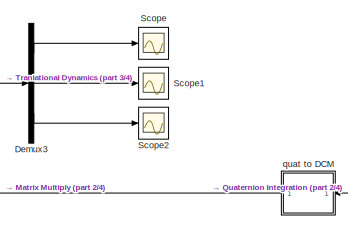
[diagram: root canvas - part 1/4, top center region]
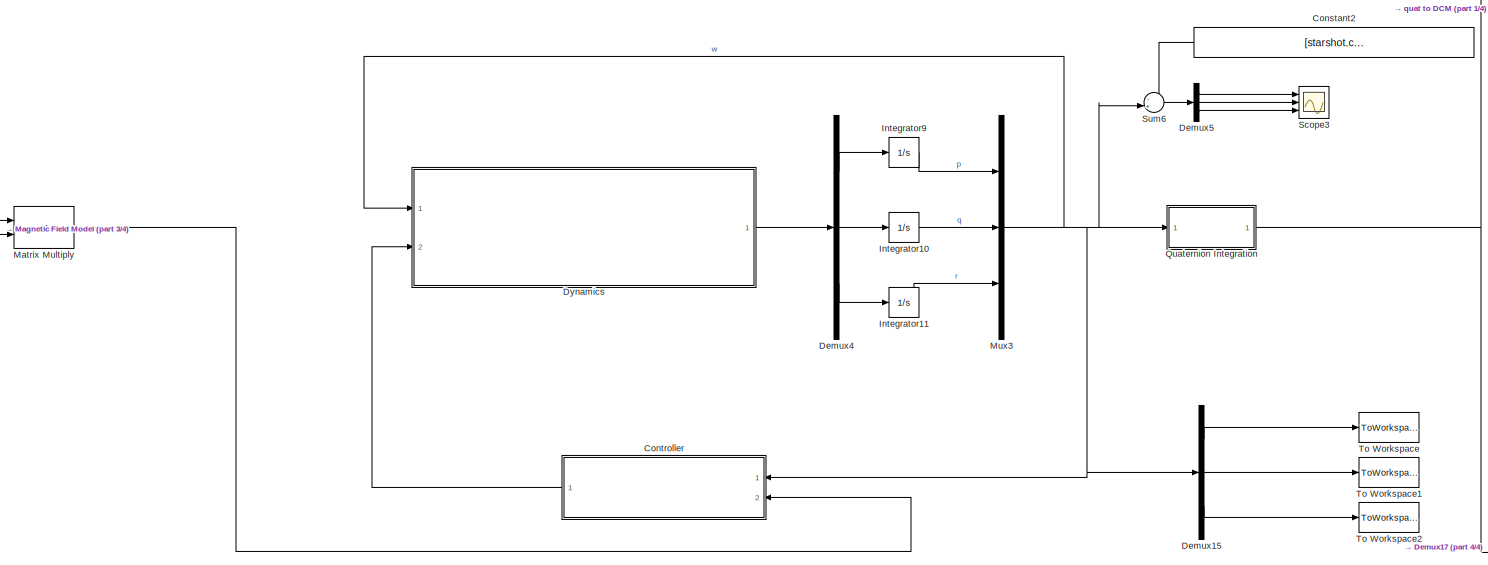
[diagram: root canvas - part 2/4, central region]
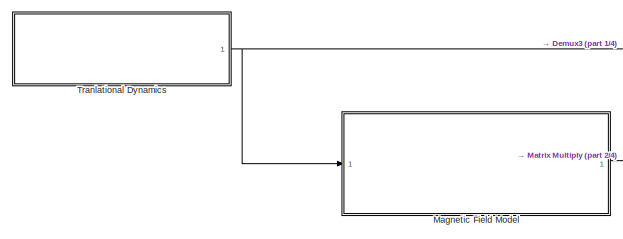
[diagram: root canvas - part 3/4, middle left region]
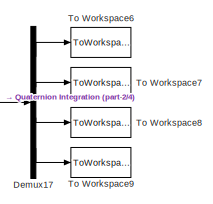
[diagram: root canvas - part 4/4, bottom right region]
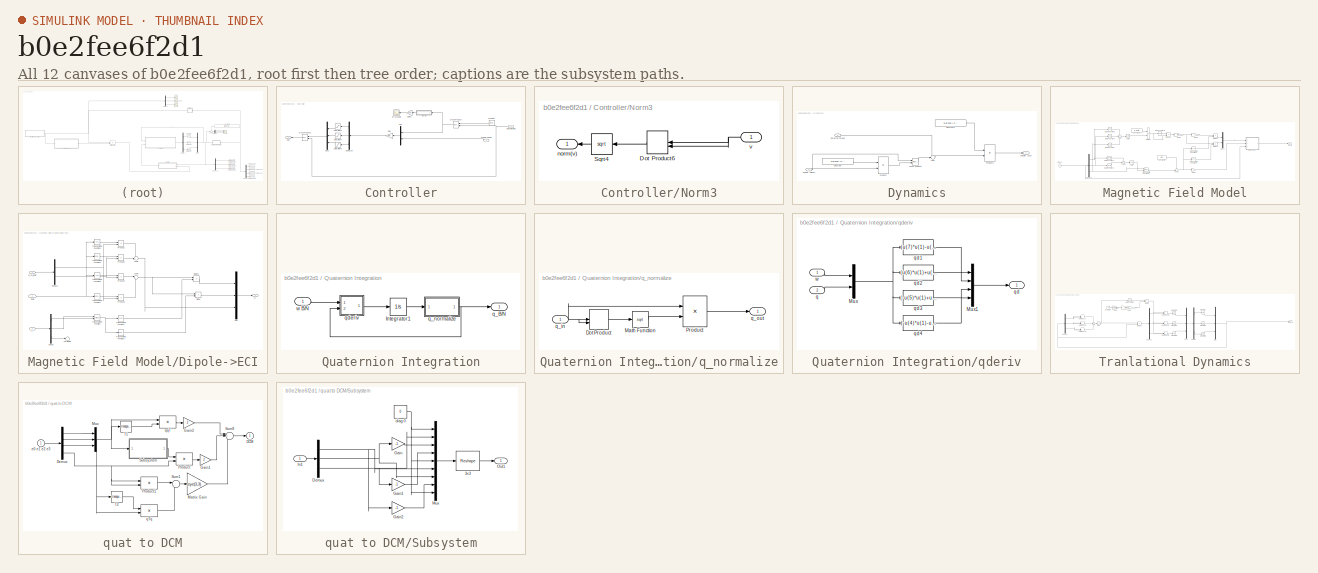
[diagram: thumbnail index - all 12 canvases of the model, root first then tree order]
MODEL slx_b0e2fee6f2d1
KIND model
CONFIG AbsTol = auto
CONFIG EnableMultiTasking = off
CONFIG FixedStep = auto
CONFIG MaxStep = 4.0
CONFIG MinStep = .001
CONFIG RelTol = 1e-6
CONFIG SampleTimeConstraint = Unconstrained
CONFIG Solver = ode45
CONFIG SolverName = ode45
CONFIG StartTime = 0.0
CONFIG StopTime = 10000
BLOCK [Constant] Constant2
  Value = [starshot.cmd.p,starshot.cmd.q,starshot.cmd.r]'
BLOCK [SubSystem] Controller
  Ports = [2, 1]
  RequestExecContextInheritance = off
  Variant = off
BLOCK [Inport] Controller/Angular Velocity
  IconDisplay = Port number
BLOCK [Constant] Controller/Constant
  Value = [0,0,1]'
BLOCK [Reference] Controller/Cross Product  REF=vrlib/Utilities/Cross Product
  Ports = [2, 1]
  SourceBlock = vrlib/Utilities/Cross Product
  SourceProductBaseCode = VR
  SourceProductName = Simulink 3D Animation
  SourceType = Cross Product
BLOCK [Reference] Controller/Cross Product2  REF=vrlib/Utilities/Cross Product
  Ports = [2, 1]
  SourceBlock = vrlib/Utilities/Cross Product
  SourceProductBaseCode = VR
  SourceProductName = Simulink 3D Animation
  SourceType = Cross Product
BLOCK [Demux] Controller/Demux15
  DisplayOption = bar
  Outputs = 3
  Ports = [1, 3]
BLOCK [Scope] Controller/Error angle
  NumInputPorts = 1
  Ports = [1]
  ScopeSpecificationString = Simulink.scopes.TimeScopeBlockCfg('CurrentConfiguration', extmgr.ConfigurationSet(extmgr.Configuration('Core','General UI',true),extmgr.Configuration('Core','Source UI',true),extmgr.Configuration('Sources','WiredSimulink',true,'DataLoggingVariableName','ScopeData1'),extmgr.Configuration('Visuals','Time Domain',true,'SerializedDisplays',{struct('MinYLimReal','-0.00013','MaxYLimReal','0.00152','YLab...<+1462ch>
BLOCK [Gain] Controller/Gain
  Gain = Klqr
  Multiplication = Matrix(K*u)
  OutDataTypeStr = Inherit: Inherit via internal rule
  ParamDataTypeStr = Inherit: Inherit via internal rule
  SaturateOnIntegerOverflow = off
BLOCK [Gain] Controller/Gain8
  Gain = 180/pi
  OutDataTypeStr = Inherit: Inherit via internal rule
  ParamDataTypeStr = Inherit: Inherit via internal rule
  SaturateOnIntegerOverflow = off
BLOCK [Inport] Controller/Magnetic Field
  IconDisplay = Port number
  Port = 2
BLOCK [Mux] Controller/Mux
  DisplayOption = bar
  Inputs = 2
  Ports = [2, 1]
BLOCK [Mux] Controller/Mux2
  DisplayOption = bar
  Inputs = 3
  Ports = [3, 1]
BLOCK [SubSystem] Controller/Norm3
  Ports = [1, 1]
  RequestExecContextInheritance = off
  Variant = off
BLOCK [DotProduct] Controller/Norm3/Dot Product6
  OutDataTypeStr = Inherit: Inherit via internal rule
BLOCK [Sqrt] Controller/Norm3/Sqrt4
BLOCK [Outport] Controller/Norm3/norm(v)
  IconDisplay = Port number
BLOCK [Inport] Controller/Norm3/v
  IconDisplay = Port number
BLOCK [Outport] Controller/Out1
  IconDisplay = Port number
BLOCK [Saturate] Controller/Saturation3
  InputPortMap = u0
  LowerLimit = -1.3
  Ports = [1, 1]
  UpperLimit = 1.3
BLOCK [Saturate] Controller/Saturation4
  InputPortMap = u0
  LowerLimit = -1.3
  Ports = [1, 1]
  UpperLimit = 1.3
BLOCK [Saturate] Controller/Saturation5
  InputPortMap = u0
  LowerLimit = -1.3
  Ports = [1, 1]
  UpperLimit = 1.3
BLOCK [Demux] Demux15
  DisplayOption = bar
  Outputs = 3
  Ports = [1, 3]
BLOCK [Demux] Demux17
  DisplayOption = bar
  Ports = [1, 4]
BLOCK [Demux] Demux3
  DisplayOption = bar
  Outputs = 3
  Ports = [1, 3]
BLOCK [Demux] Demux4
  DisplayOption = bar
  Outputs = 3
  Ports = [1, 3]
BLOCK [Demux] Demux5
  DisplayOption = bar
  Outputs = 3
  Ports = [1, 3]
BLOCK [SubSystem] Dynamics
  Ports = [2, 1]
  RequestExecContextInheritance = off
  Variant = off
BLOCK [Outport] Dynamics/Angular Accel
  IconDisplay = Port number
BLOCK [Inport] Dynamics/Angular Velocity
  IconDisplay = Port number
BLOCK [Constant] Dynamics/Constant
  Value = starshot.IC.massproperties.I
BLOCK [Constant] Dynamics/Constant1
  Value = starshot.IC.massproperties.Iinv
BLOCK [Reference] Dynamics/Cross Product  REF=vrlib/Utilities/Cross Product
  Ports = [2, 1]
  SourceBlock = vrlib/Utilities/Cross Product
  SourceProductBaseCode = VR
  SourceProductName = Simulink 3D Animation
  SourceType = Cross Product
BLOCK [Inport] Dynamics/External Torque
  IconDisplay = Port number
  Port = 2
BLOCK [Product] Dynamics/Product
  InputSameDT = off
  Multiplication = Matrix(*)
  OutDataTypeStr = Inherit: Inherit via internal rule
  Ports = [2, 1]
  RndMeth = Floor
  SaturateOnIntegerOverflow = off
BLOCK [Product] Dynamics/Product1
  InputSameDT = off
  Multiplication = Matrix(*)
  OutDataTypeStr = Inherit: Inherit via internal rule
  Ports = [2, 1]
  RndMeth = Floor
  SaturateOnIntegerOverflow = off
BLOCK [Sum] Dynamics/Sum
  IconShape = round
  InputSameDT = off
  Inputs = +-
  OutDataTypeStr = Inherit: Inherit via internal rule
  Ports = [2, 1]
  SaturateOnIntegerOverflow = off
BLOCK [Integrator] Integrator10
  InitialCondition = starshot.IC.q
  Ports = [1, 1]
BLOCK [Integrator] Integrator11
  InitialCondition = starshot.IC.r
  Ports = [1, 1]
BLOCK [Integrator] Integrator9
  InitialCondition = starshot.IC.p
  Ports = [1, 1]
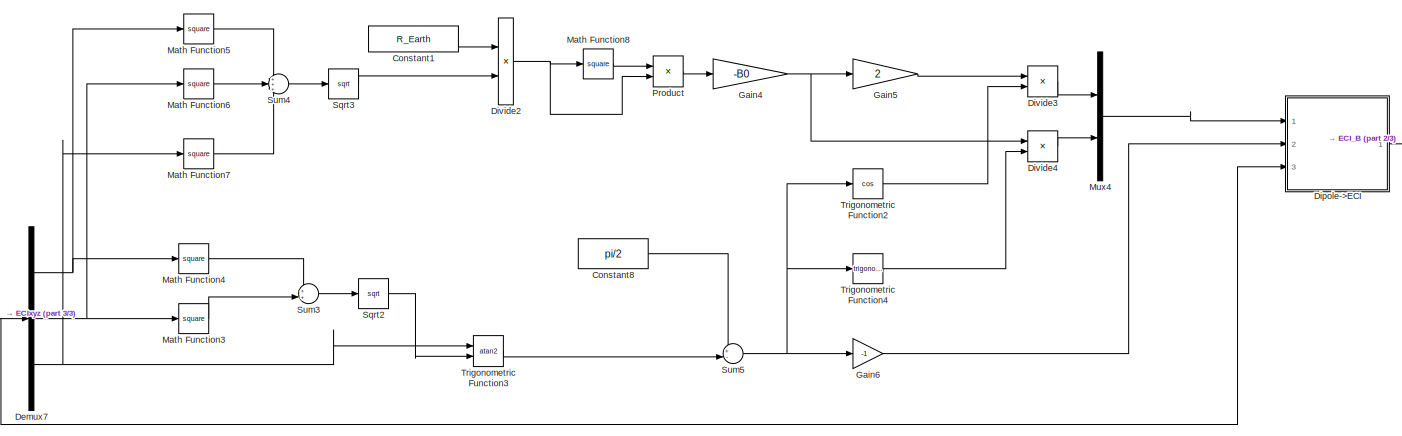
[diagram: Magnetic Field Model - part 1/3, most of the canvas]
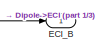
[diagram: Magnetic Field Model - part 2/3, middle right region]
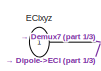
[diagram: Magnetic Field Model - part 3/3, bottom left region]
BLOCK [SubSystem] Magnetic Field Model
  Ports = [1, 1]
  RequestExecContextInheritance = off
  Variant = off
BLOCK [Constant] Magnetic Field Model/Constant1
  Value = R_Earth
BLOCK [Constant] Magnetic Field Model/Constant8
  Value = pi/2
BLOCK [Demux] Magnetic Field Model/Demux7
  DisplayOption = bar
  Outputs = 3
  Ports = [1, 3]
BLOCK [SubSystem] Magnetic Field Model/Dipole->ECI
  Ports = [3, 1]
  RequestExecContextInheritance = off
  Variant = off
BLOCK [Inport] Magnetic Field Model/Dipole->ECI/-theta
  IconDisplay = Port number
  Port = 2
BLOCK [Outport] Magnetic Field Model/Dipole->ECI/B
  IconDisplay = Port number
BLOCK [Inport] Magnetic Field Model/Dipole->ECI/B_r,B_theta
  IconDisplay = Port number
BLOCK [Demux] Magnetic Field Model/Dipole->ECI/Demux
  DisplayOption = bar
  Outputs = 3
  Ports = [1, 3]
BLOCK [Demux] Magnetic Field Model/Dipole->ECI/Demux8
  DisplayOption = bar
  Outputs = 2
  Ports = [1, 2]
BLOCK [Product] Magnetic Field Model/Dipole->ECI/Divide
  InputSameDT = off
  Inputs = **
  OutDataTypeStr = Inherit: Inherit via internal rule
  Ports = [2, 1]
  RndMeth = Floor
  SaturateOnIntegerOverflow = off
BLOCK [Product] Magnetic Field Model/Dipole->ECI/Divide1
  InputSameDT = off
  Inputs = **
  OutDataTypeStr = Inherit: Inherit via internal rule
  Ports = [2, 1]
  RndMeth = Floor
  SaturateOnIntegerOverflow = off
BLOCK [Mux] Magnetic Field Model/Dipole->ECI/Mux
  DisplayOption = bar
  Inputs = 3
  Ports = [3, 1]
BLOCK [Product] Magnetic Field Model/Dipole->ECI/Product1
  InputSameDT = off
  OutDataTypeStr = Inherit: Inherit via internal rule
  Ports = [2, 1]
  RndMeth = Floor
  SaturateOnIntegerOverflow = off
BLOCK [Product] Magnetic Field Model/Dipole->ECI/Product2
  InputSameDT = off
  OutDataTypeStr = Inherit: Inherit via internal rule
  Ports = [2, 1]
  RndMeth = Floor
  SaturateOnIntegerOverflow = off
BLOCK [Product] Magnetic Field Model/Dipole->ECI/Product3
  InputSameDT = off
  OutDataTypeStr = Inherit: Inherit via internal rule
  Ports = [2, 1]
  RndMeth = Floor
  SaturateOnIntegerOverflow = off
BLOCK [Product] Magnetic Field Model/Dipole->ECI/Product4
  InputSameDT = off
  OutDataTypeStr = Inherit: Inherit via internal rule
  Ports = [2, 1]
  RndMeth = Floor
  SaturateOnIntegerOverflow = off
BLOCK [Sum] Magnetic Field Model/Dipole->ECI/Sum5
  IconShape = round
  InputSameDT = off
  Inputs = +-|
  OutDataTypeStr = Inherit: Inherit via internal rule
  Ports = [2, 1]
  SaturateOnIntegerOverflow = off
BLOCK [Sum] Magnetic Field Model/Dipole->ECI/Sum6
  IconShape = round
  InputSameDT = off
  Inputs = |++
  OutDataTypeStr = Inherit: Inherit via internal rule
  Ports = [2, 1]
  SaturateOnIntegerOverflow = off
BLOCK [Terminator] Magnetic Field Model/Dipole->ECI/Terminator
BLOCK [Trigonometry] Magnetic Field Model/Dipole->ECI/Trigonometric Function
  Operator = atan2
  Ports = [2, 1]
BLOCK [Trigonometry] Magnetic Field Model/Dipole->ECI/Trigonometric Function1
  Operator = cos
  Ports = [1, 1]
BLOCK [Trigonometry] Magnetic Field Model/Dipole->ECI/Trigonometric Function2
  Ports = [1, 1]
BLOCK [Trigonometry] Magnetic Field Model/Dipole->ECI/Trigonometric Function5
  Operator = cos
  Ports = [1, 1]
BLOCK [Trigonometry] Magnetic Field Model/Dipole->ECI/Trigonometric Function6
  Ports = [1, 1]
BLOCK [Trigonometry] Magnetic Field Model/Dipole->ECI/Trigonometric Function7
  Ports = [1, 1]
BLOCK [Trigonometry] Magnetic Field Model/Dipole->ECI/Trigonometric Function8
  Operator = cos
  Ports = [1, 1]
BLOCK [Inport] Magnetic Field Model/Dipole->ECI/r
  IconDisplay = Port number
  Port = 3
BLOCK [Product] Magnetic Field Model/Divide2
  InputSameDT = off
  Inputs = */
  OutDataTypeStr = Inherit: Inherit via internal rule
  Ports = [2, 1]
  RndMeth = Floor
  SaturateOnIntegerOverflow = off
BLOCK [Product] Magnetic Field Model/Divide3
  InputSameDT = off
  Inputs = **
  OutDataTypeStr = Inherit: Inherit via internal rule
  Ports = [2, 1]
  RndMeth = Floor
  SaturateOnIntegerOverflow = off
BLOCK [Product] Magnetic Field Model/Divide4
  InputSameDT = off
  Inputs = **
  OutDataTypeStr = Inherit: Inherit via internal rule
  Ports = [2, 1]
  RndMeth = Floor
  SaturateOnIntegerOverflow = off
BLOCK [Outport] Magnetic Field Model/ECI_B
  IconDisplay = Port number
BLOCK [Inport] Magnetic Field Model/ECIxyz
  IconDisplay = Port number
BLOCK [Gain] Magnetic Field Model/Gain4
  Gain = -B0
  OutDataTypeStr = Inherit: Inherit via internal rule
  ParamDataTypeStr = Inherit: Inherit via internal rule
  SaturateOnIntegerOverflow = off
BLOCK [Gain] Magnetic Field Model/Gain5
  Gain = 2
  OutDataTypeStr = Inherit: Inherit via internal rule
  ParamDataTypeStr = Inherit: Inherit via internal rule
  SaturateOnIntegerOverflow = off
BLOCK [Gain] Magnetic Field Model/Gain6
  Gain = -1
  OutDataTypeStr = Inherit: Inherit via internal rule
  ParamDataTypeStr = Inherit: Inherit via internal rule
  SaturateOnIntegerOverflow = off
BLOCK [Math] Magnetic Field Model/Math Function3
  Operator = square
  Ports = [1, 1]
BLOCK [Math] Magnetic Field Model/Math Function4
  Operator = square
  Ports = [1, 1]
BLOCK [Math] Magnetic Field Model/Math Function5
  Operator = square
  Ports = [1, 1]
BLOCK [Math] Magnetic Field Model/Math Function6
  Operator = square
  Ports = [1, 1]
BLOCK [Math] Magnetic Field Model/Math Function7
  Operator = square
  Ports = [1, 1]
BLOCK [Math] Magnetic Field Model/Math Function8
  Operator = square
  Ports = [1, 1]
BLOCK [Mux] Magnetic Field Model/Mux4
  DisplayOption = bar
  Inputs = 2
  Ports = [2, 1]
BLOCK [Product] Magnetic Field Model/Product
  InputSameDT = off
  OutDataTypeStr = Inherit: Inherit via internal rule
  Ports = [2, 1]
  RndMeth = Floor
  SaturateOnIntegerOverflow = off
BLOCK [Sqrt] Magnetic Field Model/Sqrt2
BLOCK [Sqrt] Magnetic Field Model/Sqrt3
BLOCK [Sum] Magnetic Field Model/Sum3
  IconShape = round
  InputSameDT = off
  OutDataTypeStr = Inherit: Inherit via internal rule
  Ports = [2, 1]
  SaturateOnIntegerOverflow = off
BLOCK [Sum] Magnetic Field Model/Sum4
  IconShape = round
  InputSameDT = off
  Inputs = +++
  OutDataTypeStr = Inherit: Inherit via internal rule
  Ports = [3, 1]
  SaturateOnIntegerOverflow = off
BLOCK [Sum] Magnetic Field Model/Sum5
  IconShape = round
  InputSameDT = off
  Inputs = +-|
  OutDataTypeStr = Inherit: Inherit via internal rule
  Ports = [2, 1]
  SaturateOnIntegerOverflow = off
BLOCK [Trigonometry] Magnetic Field Model/Trigonometric Function2
  Operator = cos
  Ports = [1, 1]
BLOCK [Trigonometry] Magnetic Field Model/Trigonometric Function3
  Operator = atan2
  Ports = [2, 1]
BLOCK [Trigonometry] Magnetic Field Model/Trigonometric Function4
  Ports = [1, 1]
BLOCK [Product] Matrix Multiply
  InputSameDT = off
  Multiplication = Matrix(*)
  OutDataTypeStr = Inherit: Inherit via internal rule
  Ports = [2, 1]
  RndMeth = Floor
  SaturateOnIntegerOverflow = off
BLOCK [Mux] Mux3
  DisplayOption = bar
  Inputs = 3
  Ports = [3, 1]
BLOCK [SubSystem] Quaternion Integration
  Ports = [1, 1]
  RequestExecContextInheritance = off
  Variant = off
BLOCK [Integrator] Quaternion Integration/Integrator1
  InitialCondition = q0
  Ports = [1, 1]
BLOCK [Outport] Quaternion Integration/q_B//N
  IconDisplay = Port number
BLOCK [SubSystem] Quaternion Integration/q_normalize
  Ports = [1, 1]
  RequestExecContextInheritance = off
  Variant = off
BLOCK [DotProduct] Quaternion Integration/q_normalize/Dot Product
  OutDataTypeStr = Inherit: Inherit via internal rule
BLOCK [Math] Quaternion Integration/q_normalize/Math Function
  Operator = sqrt
  Ports = [1, 1]
BLOCK [Product] Quaternion Integration/q_normalize/Product
  Inputs = */
  Ports = [2, 1]
  RndMeth = Floor
BLOCK [Inport] Quaternion Integration/q_normalize/q_in
  IconDisplay = Port number
  PortDimensions = 4
BLOCK [Outport] Quaternion Integration/q_normalize/q_out
  IconDisplay = Port number
BLOCK [SubSystem] Quaternion Integration/qderiv
  Ports = [2, 1]
  RequestExecContextInheritance = off
  Variant = off
BLOCK [Mux] Quaternion Integration/qderiv/Mux
  DisplayOption = bar
  Inputs = 2
  Ports = [2, 1]
BLOCK [Mux] Quaternion Integration/qderiv/Mux1
  DisplayOption = bar
  Ports = [4, 1]
BLOCK [Inport] Quaternion Integration/qderiv/q
  IconDisplay = Port number
  Port = 2
BLOCK [Outport] Quaternion Integration/qderiv/qd
  IconDisplay = Port number
BLOCK [Fcn] Quaternion Integration/qderiv/qd1
  Expr = (u(7)*u(1)-u(6)*u(2)+u(5)*u(3))/2
BLOCK [Fcn] Quaternion Integration/qderiv/qd2
  Expr = (u(6)*u(1)+u(7)*u(2)-u(4)*u(3))/2
BLOCK [Fcn] Quaternion Integration/qderiv/qd3
  Expr = (-u(5)*u(1)+u(4)*u(2)+u(7)*u(3))/2
BLOCK [Fcn] Quaternion Integration/qderiv/qd4
  Expr = (-u(4)*u(1)-u(5)*u(2)-u(6)*u(3))/2
BLOCK [Inport] Quaternion Integration/qderiv/w
  IconDisplay = Port number
BLOCK [Inport] Quaternion Integration/w B//N
  IconDisplay = Port number
BLOCK [Scope] Scope
  NumInputPorts = 1
  Ports = [1]
  ScopeSpecificationString = Simulink.scopes.TimeScopeBlockCfg('CurrentConfiguration', extmgr.ConfigurationSet(extmgr.Configuration('Core','General UI',true),extmgr.Configuration('Core','Source UI',true),extmgr.Configuration('Sources','WiredSimulink',true),extmgr.Configuration('Visuals','Time Domain',true,'SerializedDisplays',{struct('MinYLimReal','-6825378.18868','MaxYLimReal','8536153.13208','YLabelReal','','MinYLimMag','  ...<+1402ch>
BLOCK [Scope] Scope1
  NumInputPorts = 1
  Ports = [1]
  ScopeSpecificationString = Simulink.scopes.TimeScopeBlockCfg('CurrentConfiguration', extmgr.ConfigurationSet(extmgr.Configuration('Core','General UI',true),extmgr.Configuration('Core','Source UI',true),extmgr.Configuration('Sources','WiredSimulink',true,'DataLoggingVariableName','ScopeData1'),extmgr.Configuration('Visuals','Time Domain',true,'SerializedDisplays',{struct('MinYLimReal','-7607124.84143','MaxYLimReal','7601220....<+1442ch>
BLOCK [Scope] Scope2
  NumInputPorts = 1
  Ports = [1]
  ScopeSpecificationString = Simulink.scopes.TimeScopeBlockCfg('CurrentConfiguration', extmgr.ConfigurationSet(extmgr.Configuration('Core','General UI',true),extmgr.Configuration('Core','Source UI',true),extmgr.Configuration('Sources','WiredSimulink',true,'DataLoggingVariableName','ScopeData2'),extmgr.Configuration('Visuals','Time Domain',true,'SerializedDisplays',{struct('MinYLimReal','-1.00000','MaxYLimReal','1.00000','YLab...<+1359ch>
BLOCK [Scope] Scope3
  NumInputPorts = 3
  Ports = [3]
  ScopeSpecificationString = Simulink.scopes.TimeScopeBlockCfg('CurrentConfiguration', extmgr.ConfigurationSet(extmgr.Configuration('Core','General UI',true),extmgr.Configuration('Core','Source UI',true),extmgr.Configuration('Sources','WiredSimulink',true,'DataLoggingVariableName','ScopeData1'),extmgr.Configuration('Visuals','Time Domain',true,'SerializedDisplays',{struct('MinYLimReal','-0.17209','MaxYLimReal','0.05774','YLab...<+2704ch>
BLOCK [Sum] Sum6
  IconShape = round
  InputSameDT = off
  Inputs = -+|
  OutDataTypeStr = Inherit: Inherit via internal rule
  Ports = [2, 1]
  SaturateOnIntegerOverflow = off
BLOCK [ToWorkspace] To Workspace
  FixptAsFi = on
  MaxDataPoints = inf
  Ports = [1]
  SampleTime = -1
  Save2DSignal = 3-D array (concatenate along third dimension)
  SaveFormat = Timeseries
  VariableName = p
BLOCK [ToWorkspace] To Workspace1
  FixptAsFi = on
  MaxDataPoints = inf
  Ports = [1]
  SampleTime = -1
  Save2DSignal = 3-D array (concatenate along third dimension)
  SaveFormat = Timeseries
  VariableName = q
BLOCK [ToWorkspace] To Workspace2
  FixptAsFi = on
  MaxDataPoints = inf
  Ports = [1]
  SampleTime = -1
  Save2DSignal = 3-D array (concatenate along third dimension)
  SaveFormat = Timeseries
  VariableName = r
BLOCK [ToWorkspace] To Workspace6
  FixptAsFi = on
  MaxDataPoints = inf
  Ports = [1]
  SampleTime = -1
  Save2DSignal = 3-D array (concatenate along third dimension)
  SaveFormat = Timeseries
  VariableName = q1
BLOCK [ToWorkspace] To Workspace7
  FixptAsFi = on
  MaxDataPoints = inf
  Ports = [1]
  SampleTime = -1
  Save2DSignal = 3-D array (concatenate along third dimension)
  SaveFormat = Timeseries
  VariableName = q2
BLOCK [ToWorkspace] To Workspace8
  FixptAsFi = on
  MaxDataPoints = inf
  Ports = [1]
  SampleTime = -1
  Save2DSignal = 3-D array (concatenate along third dimension)
  SaveFormat = Timeseries
  VariableName = q3
BLOCK [ToWorkspace] To Workspace9
  FixptAsFi = on
  MaxDataPoints = inf
  Ports = [1]
  SampleTime = -1
  Save2DSignal = 3-D array (concatenate along third dimension)
  SaveFormat = Timeseries
  VariableName = q4
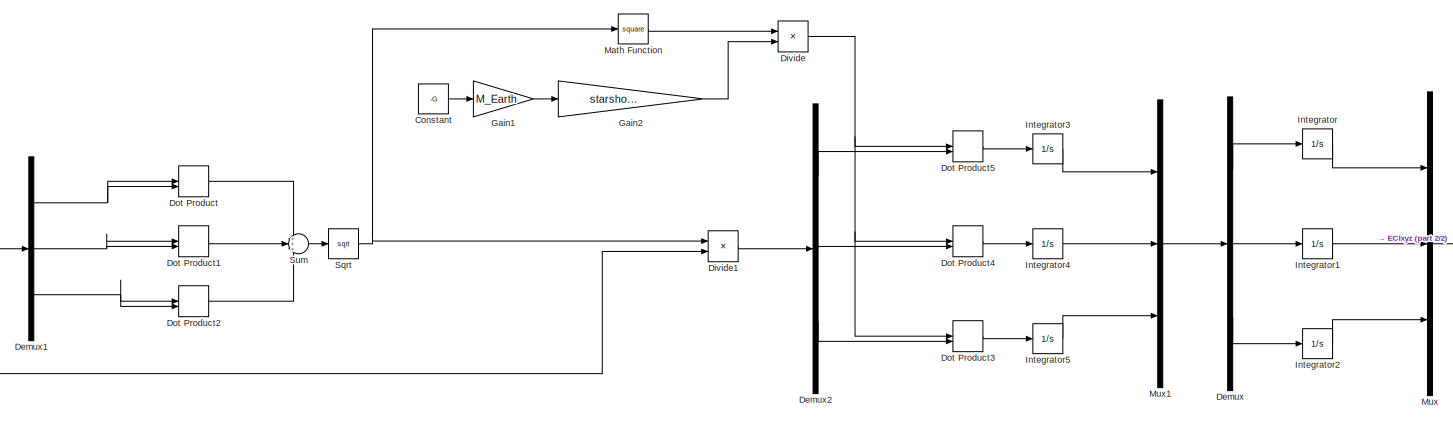
[diagram: Tranlational Dynamics - part 1/2, center side, full height]
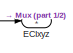
[diagram: Tranlational Dynamics - part 2/2, middle right region]
BLOCK [SubSystem] Tranlational Dynamics
  Ports = [0, 1]
  RequestExecContextInheritance = off
  Variant = off
BLOCK [Constant] Tranlational Dynamics/Constant
  Value = -G
BLOCK [Demux] Tranlational Dynamics/Demux
  DisplayOption = bar
  Outputs = 3
  Ports = [1, 3]
BLOCK [Demux] Tranlational Dynamics/Demux1
  DisplayOption = bar
  Outputs = 3
  Ports = [1, 3]
BLOCK [Demux] Tranlational Dynamics/Demux2
  DisplayOption = bar
  Outputs = 3
  Ports = [1, 3]
BLOCK [Product] Tranlational Dynamics/Divide
  InputSameDT = off
  Inputs = /*
  OutDataTypeStr = Inherit: Inherit via internal rule
  Ports = [2, 1]
  RndMeth = Floor
  SaturateOnIntegerOverflow = off
BLOCK [Product] Tranlational Dynamics/Divide1
  InputSameDT = off
  Inputs = /*
  OutDataTypeStr = Inherit: Inherit via internal rule
  Ports = [2, 1]
  RndMeth = Floor
  SaturateOnIntegerOverflow = off
BLOCK [DotProduct] Tranlational Dynamics/Dot Product
  OutDataTypeStr = Inherit: Inherit via internal rule
BLOCK [DotProduct] Tranlational Dynamics/Dot Product1
  OutDataTypeStr = Inherit: Inherit via internal rule
BLOCK [DotProduct] Tranlational Dynamics/Dot Product2
  OutDataTypeStr = Inherit: Inherit via internal rule
BLOCK [DotProduct] Tranlational Dynamics/Dot Product3
  OutDataTypeStr = Inherit: Inherit via internal rule
BLOCK [DotProduct] Tranlational Dynamics/Dot Product4
  OutDataTypeStr = Inherit: Inherit via internal rule
BLOCK [DotProduct] Tranlational Dynamics/Dot Product5
  OutDataTypeStr = Inherit: Inherit via internal rule
BLOCK [Outport] Tranlational Dynamics/ECIxyz
  IconDisplay = Port number
BLOCK [Gain] Tranlational Dynamics/Gain1
  Gain = M_Earth
  OutDataTypeStr = Inherit: Inherit via internal rule
  ParamDataTypeStr = Inherit: Inherit via internal rule
  SaturateOnIntegerOverflow = off
BLOCK [Gain] Tranlational Dynamics/Gain2
  Gain = starshot.IC.massproperties.m
  OutDataTypeStr = Inherit: Inherit via internal rule
  ParamDataTypeStr = Inherit: Inherit via internal rule
  SaturateOnIntegerOverflow = off
BLOCK [Integrator] Tranlational Dynamics/Integrator
  InitialCondition = starshot.IC.x
  Ports = [1, 1]
BLOCK [Integrator] Tranlational Dynamics/Integrator1
  InitialCondition = starshot.IC.y
  Ports = [1, 1]
BLOCK [Integrator] Tranlational Dynamics/Integrator2
  InitialCondition = starshot.IC.z
  Ports = [1, 1]
BLOCK [Integrator] Tranlational Dynamics/Integrator3
  InitialCondition = starshot.IC.xdot
  Ports = [1, 1]
BLOCK [Integrator] Tranlational Dynamics/Integrator4
  InitialCondition = starshot.IC.ydot
  Ports = [1, 1]
BLOCK [Integrator] Tranlational Dynamics/Integrator5
  InitialCondition = starshot.IC.zdot
  Ports = [1, 1]
BLOCK [Math] Tranlational Dynamics/Math Function
  Operator = square
  Ports = [1, 1]
BLOCK [Mux] Tranlational Dynamics/Mux
  DisplayOption = bar
  Inputs = 3
  Ports = [3, 1]
BLOCK [Mux] Tranlational Dynamics/Mux1
  DisplayOption = bar
  Inputs = 3
  Ports = [3, 1]
BLOCK [Sqrt] Tranlational Dynamics/Sqrt
BLOCK [Sum] Tranlational Dynamics/Sum
  IconShape = round
  InputSameDT = off
  Inputs = +++
  OutDataTypeStr = Inherit: Inherit via internal rule
  Ports = [3, 1]
  SaturateOnIntegerOverflow = off
BLOCK [SubSystem] quat to DCM
  Ports = [1, 1]
  RequestExecContextInheritance = off
  ShowPortLabels = none
  Variant = off
BLOCK [Outport] quat to DCM/DCM
  IconDisplay = Port number
  InitialOutput = 0
BLOCK [Demux] quat to DCM/Demux
  Ports = [1, 4]
BLOCK [Gain] quat to DCM/Gain1
  Gain = 2
BLOCK [Gain] quat to DCM/Gain2
  Gain = 2
BLOCK [Gain] quat to DCM/Matrix Gain
  Gain = eye(3,3)
BLOCK [Mux] quat to DCM/Mux
  DisplayOption = bar
  Inputs = 3
  Ports = [3, 1]
BLOCK [Product] quat to DCM/Product
  Ports = [2, 1]
  RndMeth = Floor
BLOCK [Product] quat to DCM/Product1
  Ports = [2, 1]
  RndMeth = Floor
BLOCK [SubSystem] quat to DCM/Subsystem
  Ports = [1, 1]
  RequestExecContextInheritance = off
  Variant = off
BLOCK [Reshape] quat to DCM/Subsystem/3x3
  OutputDimensionality = Customize
  OutputDimensions = [3,3]
  Ports = [1, 1]
BLOCK [Demux] quat to DCM/Subsystem/Demux
  Outputs = 3
  Ports = [1, 3]
BLOCK [Gain] quat to DCM/Subsystem/Gain
  Gain = -1
BLOCK [Gain] quat to DCM/Subsystem/Gain1
  Gain = -1
BLOCK [Gain] quat to DCM/Subsystem/Gain2
  Gain = -1
BLOCK [Inport] quat to DCM/Subsystem/In1
  IconDisplay = Port number
BLOCK [Mux] quat to DCM/Subsystem/Mux
  DisplayOption = bar
  Inputs = 9
  Ports = [9, 1]
BLOCK [Outport] quat to DCM/Subsystem/Out1
  IconDisplay = Port number
BLOCK [Constant] quat to DCM/Subsystem/diag 0 
  Value = 0
BLOCK [Sum] quat to DCM/Sum1
  IconShape = round
  Inputs = |+-
  Ports = [2, 1]
BLOCK [Sum] quat to DCM/Sum8
  IconShape = round
  Inputs = |+-+
  Ports = [3, 1]
BLOCK [Math] quat to DCM/T1
  Operator = transpose
  Ports = [1, 1]
BLOCK [Math] quat to DCM/T2
  Operator = transpose
  Ports = [1, 1]
BLOCK [Inport] quat to DCM/e0 e1 e2 e3
  IconDisplay = Port number
BLOCK [Product] quat to DCM/qTq
  Multiplication = Matrix(*)
  Ports = [2, 1]
  RndMeth = Floor
BLOCK [Product] quat to DCM/qqT
  Multiplication = Matrix(*)
  Ports = [2, 1]
  RndMeth = Floor
LINE Constant2:1 -> Sum6:1
LINE Controller/Angular Velocity:1 -> Controller/Mux:2
LINE Controller/Constant:1 -> Controller/Cross Product:1
LINE Controller/Cross Product2:1 -> Controller/Out1:1
NET Controller/Cross Product:1 -> Controller/Mux:1, Controller/Norm3:1
LINE Controller/Demux15:1 -> Controller/Saturation3:1
LINE Controller/Demux15:2 -> Controller/Saturation4:1
LINE Controller/Demux15:3 -> Controller/Saturation5:1
LINE Controller/Gain8:1 -> Controller/Error angle:1
LINE Controller/Gain:1 -> Controller/Demux15:1
NET Controller/Magnetic Field:1 -> Controller/Cross Product2:2, Controller/Cross Product:2
LINE Controller/Mux2:1 -> Controller/Cross Product2:1
LINE Controller/Mux:1 -> Controller/Gain:1
LINE Controller/Norm3/Dot Product6:1 -> Controller/Norm3/Sqrt4:1
LINE Controller/Norm3/Sqrt4:1 -> Controller/Norm3/norm(v):1
NET Controller/Norm3/v:1 -> Controller/Norm3/Dot Product6:1, Controller/Norm3/Dot Product6:2
LINE Controller/Norm3:1 -> Controller/Gain8:1
LINE Controller/Saturation3:1 -> Controller/Mux2:1
LINE Controller/Saturation4:1 -> Controller/Mux2:2
LINE Controller/Saturation5:1 -> Controller/Mux2:3
LINE Controller:1 -> Dynamics:2
LINE Demux15:1 -> To Workspace:1
LINE Demux15:2 -> To Workspace1:1
LINE Demux15:3 -> To Workspace2:1
LINE Demux17:1 -> To Workspace6:1
LINE Demux17:2 -> To Workspace7:1
LINE Demux17:3 -> To Workspace8:1
LINE Demux17:4 -> To Workspace9:1
LINE Demux3:1 -> Scope:1
LINE Demux3:2 -> Scope1:1
LINE Demux3:3 -> Scope2:1
LINE Demux4:1 -> Integrator9:1
LINE Demux4:2 -> Integrator10:1
LINE Demux4:3 -> Integrator11:1
LINE Demux5:1 -> Scope3:1
LINE Demux5:2 -> Scope3:2
LINE Demux5:3 -> Scope3:3
NET Dynamics/Angular Velocity:1 -> Dynamics/Cross Product:1, Dynamics/Product:2
LINE Dynamics/Constant1:1 -> Dynamics/Product1:1
LINE Dynamics/Constant:1 -> Dynamics/Product:1
LINE Dynamics/Cross Product:1 -> Dynamics/Sum:2
LINE Dynamics/External Torque:1 -> Dynamics/Sum:1
LINE Dynamics/Product1:1 -> Dynamics/Angular Accel:1
LINE Dynamics/Product:1 -> Dynamics/Cross Product:2
LINE Dynamics/Sum:1 -> Dynamics/Product1:2
LINE Dynamics:1 -> Demux4:1
LINE Integrator10:1 -> Mux3:2
LINE Integrator11:1 -> Mux3:3
LINE Integrator9:1 -> Mux3:1
LINE Magnetic Field Model/Constant1:1 -> Magnetic Field Model/Divide2:1
LINE Magnetic Field Model/Constant8:1 -> Magnetic Field Model/Sum5:1
NET Magnetic Field Model/Demux7:1 -> Magnetic Field Model/Math Function4:1, Magnetic Field Model/Math Function5:1
NET Magnetic Field Model/Demux7:2 -> Magnetic Field Model/Math Function3:1, Magnetic Field Model/Math Function6:1
NET Magnetic Field Model/Demux7:3 -> Magnetic Field Model/Math Function7:1, Magnetic Field Model/Trigonometric Function3:1
NET Magnetic Field Model/Dipole->ECI/-theta:1 -> Magnetic Field Model/Dipole->ECI/Trigonometric Function5:1, Magnetic Field Model/Dipole->ECI/Trigonometric Function6:1, Magnetic Field Model/Dipole->ECI/Trigonometric Function7:1, Magnetic Field Model/Dipole->ECI/Trigonometric Function8:1
LINE Magnetic Field Model/Dipole->ECI/B_r,B_theta:1 -> Magnetic Field Model/Dipole->ECI/Demux8:1
NET Magnetic Field Model/Dipole->ECI/Demux8:1 -> Magnetic Field Model/Dipole->ECI/Product1:2, Magnetic Field Model/Dipole->ECI/Product3:2
NET Magnetic Field Model/Dipole->ECI/Demux8:2 -> Magnetic Field Model/Dipole->ECI/Product2:2, Magnetic Field Model/Dipole->ECI/Product4:2
LINE Magnetic Field Model/Dipole->ECI/Demux:1 -> Magnetic Field Model/Dipole->ECI/Trigonometric Function:2
LINE Magnetic Field Model/Dipole->ECI/Demux:2 -> Magnetic Field Model/Dipole->ECI/Trigonometric Function:1
LINE Magnetic Field Model/Dipole->ECI/Demux:3 -> Magnetic Field Model/Dipole->ECI/Terminator:1
LINE Magnetic Field Model/Dipole->ECI/Divide1:1 -> Magnetic Field Model/Dipole->ECI/Mux:1
LINE Magnetic Field Model/Dipole->ECI/Divide:1 -> Magnetic Field Model/Dipole->ECI/Mux:2
LINE Magnetic Field Model/Dipole->ECI/Mux:1 -> Magnetic Field Model/Dipole->ECI/B:1
LINE Magnetic Field Model/Dipole->ECI/Product1:1 -> Magnetic Field Model/Dipole->ECI/Sum5:1
LINE Magnetic Field Model/Dipole->ECI/Product2:1 -> Magnetic Field Model/Dipole->ECI/Sum5:2
LINE Magnetic Field Model/Dipole->ECI/Product3:1 -> Magnetic Field Model/Dipole->ECI/Sum6:2
LINE Magnetic Field Model/Dipole->ECI/Product4:1 -> Magnetic Field Model/Dipole->ECI/Sum6:1
LINE Magnetic Field Model/Dipole->ECI/Sum5:1 -> Magnetic Field Model/Dipole->ECI/Mux:3
NET Magnetic Field Model/Dipole->ECI/Sum6:1 -> Magnetic Field Model/Dipole->ECI/Divide1:1, Magnetic Field Model/Dipole->ECI/Divide:1
LINE Magnetic Field Model/Dipole->ECI/Trigonometric Function1:1 -> Magnetic Field Model/Dipole->ECI/Divide1:2
LINE Magnetic Field Model/Dipole->ECI/Trigonometric Function2:1 -> Magnetic Field Model/Dipole->ECI/Divide:2
LINE Magnetic Field Model/Dipole->ECI/Trigonometric Function5:1 -> Magnetic Field Model/Dipole->ECI/Product1:1
LINE Magnetic Field Model/Dipole->ECI/Trigonometric Function6:1 -> Magnetic Field Model/Dipole->ECI/Product2:1
LINE Magnetic Field Model/Dipole->ECI/Trigonometric Function7:1 -> Magnetic Field Model/Dipole->ECI/Product3:1
LINE Magnetic Field Model/Dipole->ECI/Trigonometric Function8:1 -> Magnetic Field Model/Dipole->ECI/Product4:1
NET Magnetic Field Model/Dipole->ECI/Trigonometric Function:1 -> Magnetic Field Model/Dipole->ECI/Trigonometric Function1:1, Magnetic Field Model/Dipole->ECI/Trigonometric Function2:1
LINE Magnetic Field Model/Dipole->ECI/r:1 -> Magnetic Field Model/Dipole->ECI/Demux:1
LINE Magnetic Field Model/Dipole->ECI:1 -> Magnetic Field Model/ECI_B:1
NET Magnetic Field Model/Divide2:1 -> Magnetic Field Model/Math Function8:1, Magnetic Field Model/Product:2
LINE Magnetic Field Model/Divide3:1 -> Magnetic Field Model/Mux4:1
LINE Magnetic Field Model/Divide4:1 -> Magnetic Field Model/Mux4:2
NET Magnetic Field Model/ECIxyz:1 -> Magnetic Field Model/Demux7:1, Magnetic Field Model/Dipole->ECI:3
NET Magnetic Field Model/Gain4:1 -> Magnetic Field Model/Divide4:1, Magnetic Field Model/Gain5:1
LINE Magnetic Field Model/Gain5:1 -> Magnetic Field Model/Divide3:1
LINE Magnetic Field Model/Gain6:1 -> Magnetic Field Model/Dipole->ECI:2
LINE Magnetic Field Model/Math Function3:1 -> Magnetic Field Model/Sum3:2
LINE Magnetic Field Model/Math Function4:1 -> Magnetic Field Model/Sum3:1
LINE Magnetic Field Model/Math Function5:1 -> Magnetic Field Model/Sum4:1
LINE Magnetic Field Model/Math Function6:1 -> Magnetic Field Model/Sum4:2
LINE Magnetic Field Model/Math Function7:1 -> Magnetic Field Model/Sum4:3
LINE Magnetic Field Model/Math Function8:1 -> Magnetic Field Model/Product:1
LINE Magnetic Field Model/Mux4:1 -> Magnetic Field Model/Dipole->ECI:1
LINE Magnetic Field Model/Product:1 -> Magnetic Field Model/Gain4:1
LINE Magnetic Field Model/Sqrt2:1 -> Magnetic Field Model/Trigonometric Function3:2
LINE Magnetic Field Model/Sqrt3:1 -> Magnetic Field Model/Divide2:2
LINE Magnetic Field Model/Sum3:1 -> Magnetic Field Model/Sqrt2:1
LINE Magnetic Field Model/Sum4:1 -> Magnetic Field Model/Sqrt3:1
NET Magnetic Field Model/Sum5:1 -> Magnetic Field Model/Gain6:1, Magnetic Field Model/Trigonometric Function2:1, Magnetic Field Model/Trigonometric Function4:1
LINE Magnetic Field Model/Trigonometric Function2:1 -> Magnetic Field Model/Divide3:2
LINE Magnetic Field Model/Trigonometric Function3:1 -> Magnetic Field Model/Sum5:2
LINE Magnetic Field Model/Trigonometric Function4:1 -> Magnetic Field Model/Divide4:2
LINE Magnetic Field Model:1 -> Matrix Multiply:2
LINE Matrix Multiply:1 -> Controller:2
NET Mux3:1 -> Controller:1, Demux15:1, Dynamics:1, Quaternion Integration:1, Sum6:2
LINE Quaternion Integration/Integrator1:1 -> Quaternion Integration/q_normalize:1
LINE Quaternion Integration/q_normalize/Dot Product:1 -> Quaternion Integration/q_normalize/Math Function:1
LINE Quaternion Integration/q_normalize/Math Function:1 -> Quaternion Integration/q_normalize/Product:2
LINE Quaternion Integration/q_normalize/Product:1 -> Quaternion Integration/q_normalize/q_out:1
NET Quaternion Integration/q_normalize/q_in:1 -> Quaternion Integration/q_normalize/Dot Product:1, Quaternion Integration/q_normalize/Dot Product:2, Quaternion Integration/q_normalize/Product:1
NET Quaternion Integration/q_normalize:1 -> Quaternion Integration/q_B//N:1, Quaternion Integration/qderiv:2
LINE Quaternion Integration/qderiv/Mux1:1 -> Quaternion Integration/qderiv/qd:1
NET Quaternion Integration/qderiv/Mux:1 -> Quaternion Integration/qderiv/qd1:1, Quaternion Integration/qderiv/qd2:1, Quaternion Integration/qderiv/qd3:1, Quaternion Integration/qderiv/qd4:1
LINE Quaternion Integration/qderiv/q:1 -> Quaternion Integration/qderiv/Mux:2
LINE Quaternion Integration/qderiv/qd1:1 -> Quaternion Integration/qderiv/Mux1:1
LINE Quaternion Integration/qderiv/qd2:1 -> Quaternion Integration/qderiv/Mux1:2
LINE Quaternion Integration/qderiv/qd3:1 -> Quaternion Integration/qderiv/Mux1:3
LINE Quaternion Integration/qderiv/qd4:1 -> Quaternion Integration/qderiv/Mux1:4
LINE Quaternion Integration/qderiv/w:1 -> Quaternion Integration/qderiv/Mux:1
LINE Quaternion Integration/qderiv:1 -> Quaternion Integration/Integrator1:1
LINE Quaternion Integration/w B//N:1 -> Quaternion Integration/qderiv:1
NET Quaternion Integration:1 -> Demux17:1, quat to DCM:1
LINE Sum6:1 -> Demux5:1
LINE Tranlational Dynamics/Constant:1 -> Tranlational Dynamics/Gain1:1
NET Tranlational Dynamics/Demux1:1 -> Tranlational Dynamics/Dot Product:1, Tranlational Dynamics/Dot Product:2
NET Tranlational Dynamics/Demux1:2 -> Tranlational Dynamics/Dot Product1:1, Tranlational Dynamics/Dot Product1:2
NET Tranlational Dynamics/Demux1:3 -> Tranlational Dynamics/Dot Product2:1, Tranlational Dynamics/Dot Product2:2
LINE Tranlational Dynamics/Demux2:1 -> Tranlational Dynamics/Dot Product5:2
LINE Tranlational Dynamics/Demux2:2 -> Tranlational Dynamics/Dot Product4:2
LINE Tranlational Dynamics/Demux2:3 -> Tranlational Dynamics/Dot Product3:2
LINE Tranlational Dynamics/Demux:1 -> Tranlational Dynamics/Integrator:1
LINE Tranlational Dynamics/Demux:2 -> Tranlational Dynamics/Integrator1:1
LINE Tranlational Dynamics/Demux:3 -> Tranlational Dynamics/Integrator2:1
LINE Tranlational Dynamics/Divide1:1 -> Tranlational Dynamics/Demux2:1
NET Tranlational Dynamics/Divide:1 -> Tranlational Dynamics/Dot Product3:1, Tranlational Dynamics/Dot Product4:1, Tranlational Dynamics/Dot Product5:1
LINE Tranlational Dynamics/Dot Product1:1 -> Tranlational Dynamics/Sum:2
LINE Tranlational Dynamics/Dot Product2:1 -> Tranlational Dynamics/Sum:3
LINE Tranlational Dynamics/Dot Product3:1 -> Tranlational Dynamics/Integrator5:1
LINE Tranlational Dynamics/Dot Product4:1 -> Tranlational Dynamics/Integrator4:1
LINE Tranlational Dynamics/Dot Product5:1 -> Tranlational Dynamics/Integrator3:1
LINE Tranlational Dynamics/Dot Product:1 -> Tranlational Dynamics/Sum:1
LINE Tranlational Dynamics/Gain1:1 -> Tranlational Dynamics/Gain2:1
LINE Tranlational Dynamics/Gain2:1 -> Tranlational Dynamics/Divide:2
LINE Tranlational Dynamics/Integrator1:1 -> Tranlational Dynamics/Mux:2
LINE Tranlational Dynamics/Integrator2:1 -> Tranlational Dynamics/Mux:3
LINE Tranlational Dynamics/Integrator3:1 -> Tranlational Dynamics/Mux1:1
LINE Tranlational Dynamics/Integrator4:1 -> Tranlational Dynamics/Mux1:2
LINE Tranlational Dynamics/Integrator5:1 -> Tranlational Dynamics/Mux1:3
LINE Tranlational Dynamics/Integrator:1 -> Tranlational Dynamics/Mux:1
LINE Tranlational Dynamics/Math Function:1 -> Tranlational Dynamics/Divide:1
LINE Tranlational Dynamics/Mux1:1 -> Tranlational Dynamics/Demux:1
NET Tranlational Dynamics/Mux:1 -> Tranlational Dynamics/Demux1:1, Tranlational Dynamics/Divide1:2, Tranlational Dynamics/ECIxyz:1
NET Tranlational Dynamics/Sqrt:1 -> Tranlational Dynamics/Divide1:1, Tranlational Dynamics/Math Function:1
LINE Tranlational Dynamics/Sum:1 -> Tranlational Dynamics/Sqrt:1
NET Tranlational Dynamics:1 -> Demux3:1, Magnetic Field Model:1
LINE quat to DCM/Demux:1 -> quat to DCM/Mux:1
LINE quat to DCM/Demux:2 -> quat to DCM/Mux:2
LINE quat to DCM/Demux:3 -> quat to DCM/Mux:3
NET quat to DCM/Demux:4 -> quat to DCM/Product1:1, quat to DCM/Product1:2, quat to DCM/Product:2
LINE quat to DCM/Gain1:1 -> quat to DCM/Sum8:2
LINE quat to DCM/Gain2:1 -> quat to DCM/Sum8:1
LINE quat to DCM/Matrix Gain:1 -> quat to DCM/Sum8:3
NET quat to DCM/Mux:1 -> quat to DCM/Subsystem:1, quat to DCM/T1:1, quat to DCM/T2:1, quat to DCM/qTq:2, quat to DCM/qqT:1
LINE quat to DCM/Product1:1 -> quat to DCM/Sum1:1
LINE quat to DCM/Product:1 -> quat to DCM/Gain1:1
LINE quat to DCM/Subsystem/3x3:1 -> quat to DCM/Subsystem/Out1:1
NET quat to DCM/Subsystem/Demux:1 -> quat to DCM/Subsystem/Gain2:1, quat to DCM/Subsystem/Mux:6
NET quat to DCM/Subsystem/Demux:2 -> quat to DCM/Subsystem/Gain:1, quat to DCM/Subsystem/Mux:7
NET quat to DCM/Subsystem/Demux:3 -> quat to DCM/Subsystem/Gain1:1, quat to DCM/Subsystem/Mux:2
LINE quat to DCM/Subsystem/Gain1:1 -> quat to DCM/Subsystem/Mux:4
LINE quat to DCM/Subsystem/Gain2:1 -> quat to DCM/Subsystem/Mux:8
LINE quat to DCM/Subsystem/Gain:1 -> quat to DCM/Subsystem/Mux:3
LINE quat to DCM/Subsystem/In1:1 -> quat to DCM/Subsystem/Demux:1
LINE quat to DCM/Subsystem/Mux:1 -> quat to DCM/Subsystem/3x3:1
NET quat to DCM/Subsystem/diag 0 :1 -> quat to DCM/Subsystem/Mux:1, quat to DCM/Subsystem/Mux:5, quat to DCM/Subsystem/Mux:9
LINE quat to DCM/Subsystem:1 -> quat to DCM/Product:1
LINE quat to DCM/Sum1:1 -> quat to DCM/Matrix Gain:1
LINE quat to DCM/Sum8:1 -> quat to DCM/DCM:1
LINE quat to DCM/T1:1 -> quat to DCM/qqT:2
LINE quat to DCM/T2:1 -> quat to DCM/qTq:1
LINE quat to DCM/e0 e1 e2 e3:1 -> quat to DCM/Demux:1
LINE quat to DCM/qTq:1 -> quat to DCM/Sum1:2
LINE quat to DCM/qqT:1 -> quat to DCM/Gain2:1
LINE quat to DCM:1 -> Matrix Multiply:1
note: NET lines group one-source signal fan-out (src -> all destinations, sorted); 1:1 wires keep LINE
